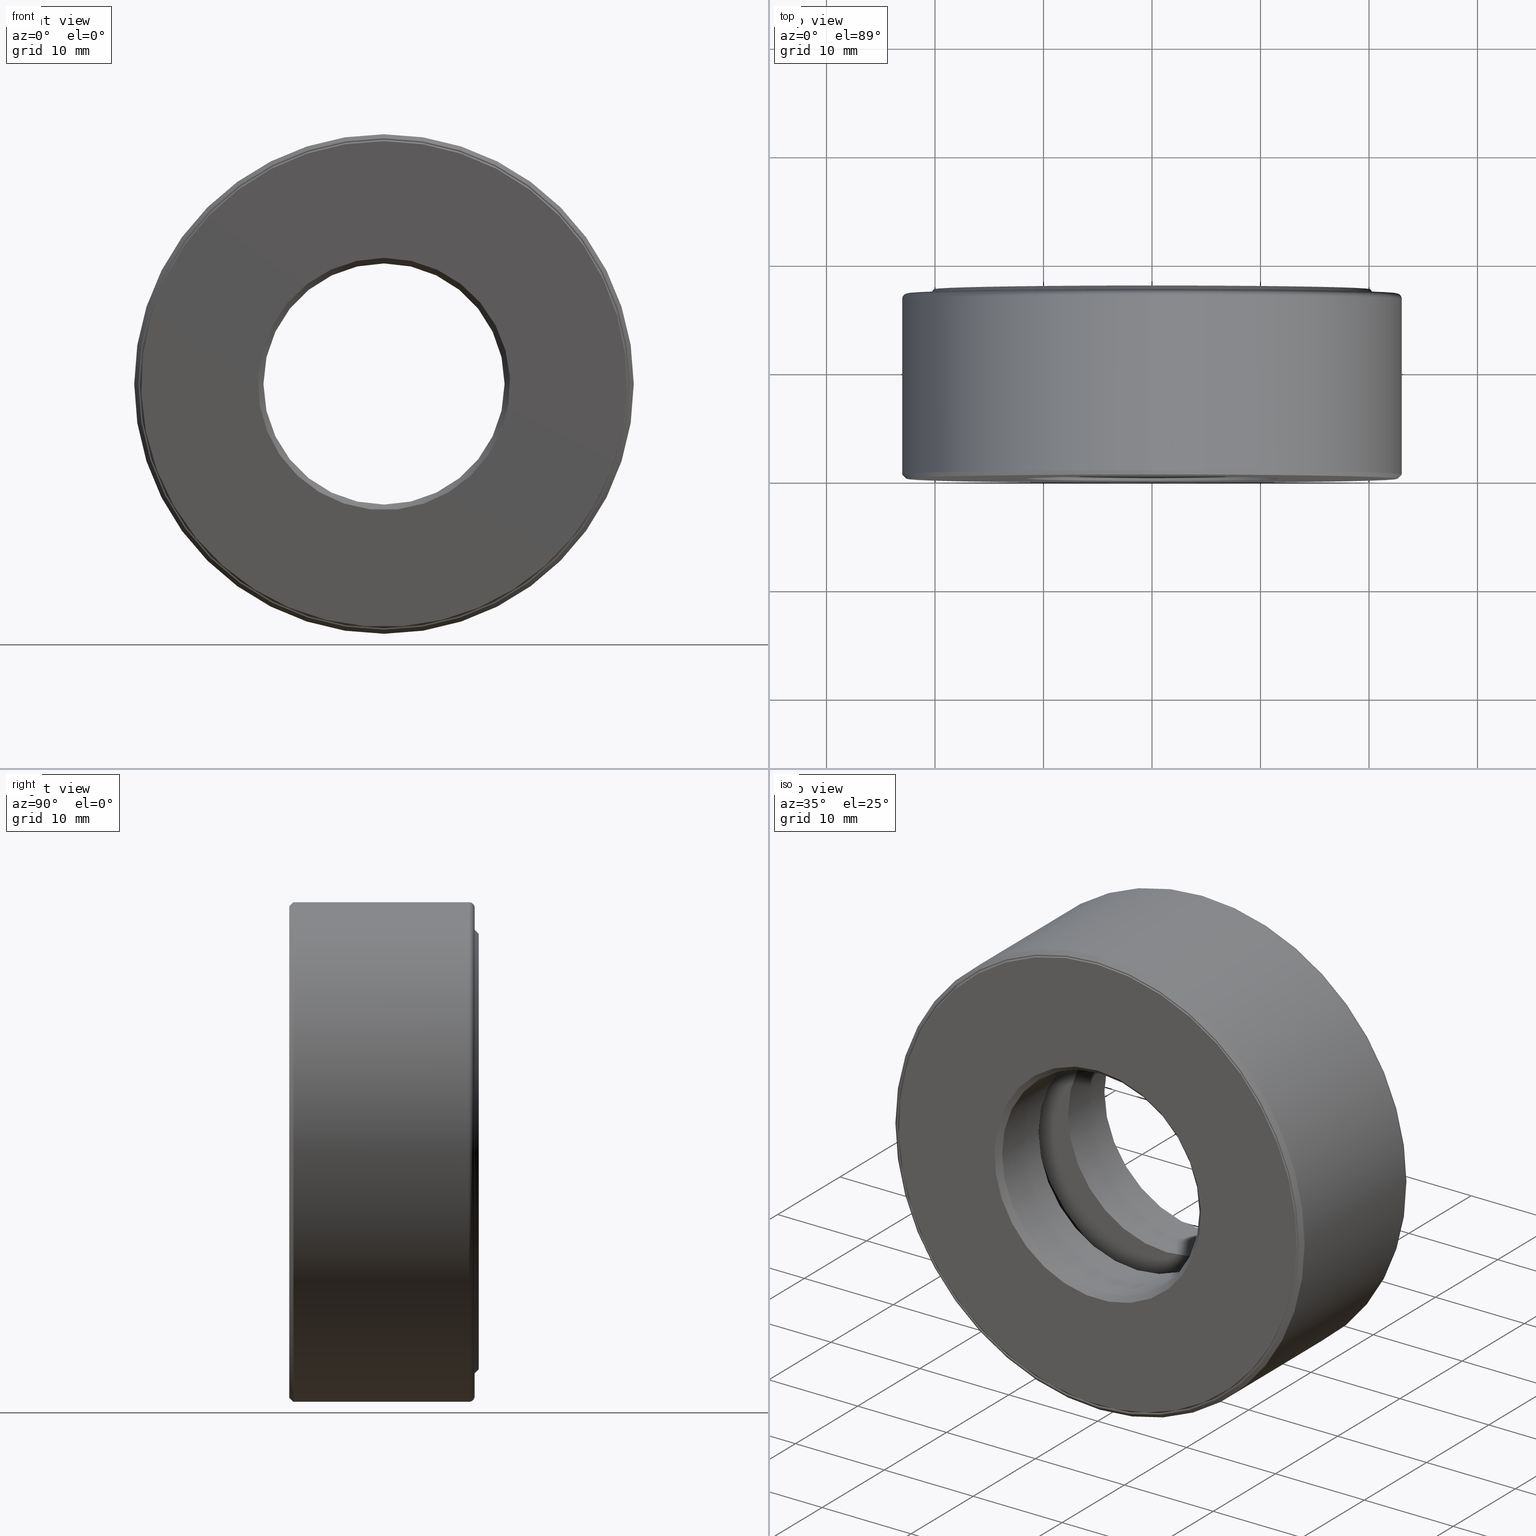
[diagram: canonical four-view strip — front | top / right | iso, engineering-drawing reading convention]
A machine part, canonical four-view strip (front | top / right | iso — engineering-drawing reading convention). The complete STEP part file that produces these views, byte-faithful:
ISO-10303-21;
HEADER;
FILE_DESCRIPTION (( 'STEP AP203' ),
    '1' );
FILE_NAME ('T-100-4.step',
    '2016-06-29T18:27:12',
    ( '' ),
    ( '' ),
    'SwSTEP 2.0',
    'SolidWorks 2016',
    '' );
FILE_SCHEMA (( 'CONFIG_CONTROL_DESIGN' ));
ENDSEC;

DATA;
#1 = AXIS2_PLACEMENT_3D ( 'NONE', #61, #114, #575 ) ;
#2 = DIRECTION ( 'NONE',  ( 0.0000000000000000000, 0.0000000000000000000, 1.000000000000000000 ) ) ;
#3 = DATE_TIME_ROLE ( 'classification_date' ) ;
#4 = DIRECTION ( 'NONE',  ( 0.0000000000000000000, 0.0000000000000000000, 1.000000000000000000 ) ) ;
#5 = DIRECTION ( 'NONE',  ( 0.0000000000000000000, -1.000000000000000000, 0.0000000000000000000 ) ) ;
#6 = EDGE_LOOP ( 'NONE', ( #111 ) ) ;
#7 = DIRECTION ( 'NONE',  ( 0.0000000000000000000, 0.0000000000000000000, 1.000000000000000000 ) ) ;
#8 = DIRECTION ( 'NONE',  ( -0.0000000000000000000, 1.000000000000000000, -0.0000000000000000000 ) ) ;
#9 = PLANE ( 'NONE',  #516 ) ;
#10 = CONICAL_SURFACE ( 'NONE', #309, 0.4375000000000000600, 0.7853981633974482800 ) ;
#11 = PERSON_AND_ORGANIZATION ( #130, #340 ) ;
#12 = EDGE_LOOP ( 'NONE', ( #605 ) ) ;
#13 = EDGE_LOOP ( 'NONE', ( #454 ) ) ;
#14 = CC_DESIGN_PERSON_AND_ORGANIZATION_ASSIGNMENT ( #11, #565, ( #489 ) ) ;
#15 = CARTESIAN_POINT ( 'NONE',  ( 0.0000000000000000000, 0.4375000000000000000, 0.0000000000000000000 ) ) ;
#16 = AXIS2_PLACEMENT_3D ( 'NONE', #172, #364, #263 ) ;
#17 = CARTESIAN_POINT ( 'NONE',  ( -1.054954555725636600E-032, -5.995991270769618800E-017, 0.0000000000000000000 ) ) ;
#18 = CIRCLE ( 'NONE', #55, 0.4375000000000000600 ) ;
#19 = DIRECTION ( 'NONE',  ( 0.0000000000000000000, 0.0000000000000000000, 1.000000000000000000 ) ) ;
#20 = PERSON_AND_ORGANIZATION ( #130, #340 ) ;
#21 = ADVANCED_BREP_SHAPE_REPRESENTATION ( 'T-100-4', ( #346, #255, #224, #234, #365, #83, #238 ), #399 ) ;
#22 = ORIENTED_EDGE ( 'NONE', *, *, #230, .F. ) ;
#23 = EDGE_CURVE ( 'NONE', #418, #418, #511, .T. ) ;
#24 = CC_DESIGN_DATE_AND_TIME_ASSIGNMENT ( #148, #334, ( #302 ) ) ;
#25 = CIRCLE ( 'NONE', #249, 0.8812500000000000900 ) ;
#26 = ORIENTED_EDGE ( 'NONE', *, *, #580, .F. ) ;
#27 = DIRECTION ( 'NONE',  ( 0.0000000000000000000, 0.0000000000000000000, 1.000000000000000000 ) ) ;
#28 = AXIS2_PLACEMENT_3D ( 'NONE', #602, #547, #219 ) ;
#29 = EDGE_CURVE ( 'NONE', #499, #499, #392, .T. ) ;
#30 = FACE_OUTER_BOUND ( 'NONE', #581, .T. ) ;
#31 = DIRECTION ( 'NONE',  ( 0.0000000000000000000, -1.000000000000000000, 0.0000000000000000000 ) ) ;
#32 = PERSON_AND_ORGANIZATION ( #130, #340 ) ;
#33 = VERTEX_POINT ( 'NONE', #135 ) ;
#34 = CC_DESIGN_DATE_AND_TIME_ASSIGNMENT ( #336, #3, ( #489 ) ) ;
#35 = ORIENTED_EDGE ( 'NONE', *, *, #126, .F. ) ;
#36 = EDGE_LOOP ( 'NONE', ( #183 ) ) ;
#37 = APPROVAL ( #53, 'UNSPECIFIED' ) ;
#38 = ADVANCED_FACE ( 'NONE', ( #447, #461 ), #138, .T. ) ;
#39 = CIRCLE ( 'NONE', #125, 0.5960000000000003100 ) ;
#40 = CARTESIAN_POINT ( 'NONE',  ( 0.0000000000000000000, 0.6524999999999999700, 0.9062500000000001100 ) ) ;
#41 = TOROIDAL_SURFACE ( 'NONE', #467, 0.8862499999999999800, 0.02000000000000005900 ) ;
#42 = CIRCLE ( 'NONE', #157, 0.4575000000000000200 ) ;
#43 = CARTESIAN_POINT ( 'NONE',  ( 0.0000000000000000000, 0.6724999999999999900, 0.8862499999999999800 ) ) ;
#44 = ADVANCED_FACE ( 'NONE', ( #322, #304 ), #122, .F. ) ;
#45 = PLANE ( 'NONE',  #99 ) ;
#46 = CARTESIAN_POINT ( 'NONE',  ( 0.0000000000000000000, -5.975917486140575200E-017, 0.0000000000000000000 ) ) ;
#47 = CARTESIAN_POINT ( 'NONE',  ( 0.0000000000000000000, 0.6524999999999999700, 0.0000000000000000000 ) ) ;
#48 = CARTESIAN_POINT ( 'NONE',  ( 0.0000000000000000000, 0.6524999999999999700, 0.8862500000000000900 ) ) ;
#49 = CARTESIAN_POINT ( 'NONE',  ( 0.0000000000000000000, 0.6875000000000000000, 0.0000000000000000000 ) ) ;
#50 = PERSON_AND_ORGANIZATION_ROLE ( 'design_owner' ) ;
#51 = EDGE_LOOP ( 'NONE', ( #205 ) ) ;
#52 = DIRECTION ( 'NONE',  ( -0.0000000000000000000, 1.000000000000000000, -0.0000000000000000000 ) ) ;
#53 = APPROVAL_STATUS ( 'not_yet_approved' ) ;
#54 = CARTESIAN_POINT ( 'NONE',  ( 0.0000000000000000000, 0.0000000000000000000, 0.0000000000000000000 ) ) ;
#55 = AXIS2_PLACEMENT_3D ( 'NONE', #335, #52, #523 ) ;
#56 = FACE_BOUND ( 'NONE', #149, .T. ) ;
#57 = DIRECTION ( 'NONE',  ( 0.0000000000000000000, 0.0000000000000000000, 1.000000000000000000 ) ) ;
#58 = VERTEX_POINT ( 'NONE', #134 ) ;
#59 = ORIENTED_EDGE ( 'NONE', *, *, #143, .T. ) ;
#60 = FACE_OUTER_BOUND ( 'NONE', #313, .T. ) ;
#61 = CARTESIAN_POINT ( 'NONE',  ( 0.0000000000000000000, 0.6875000000000000000, 0.0000000000000000000 ) ) ;
#62 = DIRECTION ( 'NONE',  ( -0.0000000000000000000, 1.000000000000000000, -0.0000000000000000000 ) ) ;
#63 = CARTESIAN_POINT ( 'NONE',  ( 0.0000000000000000000, 0.6724999999999999900, 0.0000000000000000000 ) ) ;
#64 = FACE_BOUND ( 'NONE', #374, .T. ) ;
#65 = CALENDAR_DATE ( 2016, 29, 6 ) ;
#66 = VERTEX_POINT ( 'NONE', #181 ) ;
#67 = DIRECTION ( 'NONE',  ( -3.491481338843133000E-015, 0.0000000000000000000, -1.000000000000000000 ) ) ;
#68 = EDGE_CURVE ( 'NONE', #509, #509, #540, .T. ) ;
#69 = EDGE_LOOP ( 'NONE', ( #104 ) ) ;
#70 = SPHERICAL_SURFACE ( 'NONE', #279, 0.1562500000000000000 ) ;
#71 = CIRCLE ( 'NONE', #451, 0.8460000000000002000 ) ;
#72 = CC_DESIGN_PERSON_AND_ORGANIZATION_ASSIGNMENT ( #484, #475, ( #302 ) ) ;
#73 = DIRECTION ( 'NONE',  ( 0.0000000000000000000, 0.0000000000000000000, 1.000000000000000000 ) ) ;
#74 = FACE_OUTER_BOUND ( 'NONE', #86, .T. ) ;
#75 = AXIS2_PLACEMENT_3D ( 'NONE', #546, #81, #73 ) ;
#76 = VERTEX_POINT ( 'NONE', #43 ) ;
#77 = CARTESIAN_POINT ( 'NONE',  ( 0.0000000000000000000, 0.2499999999999999200, 0.0000000000000000000 ) ) ;
#78 = EDGE_LOOP ( 'NONE', ( #59 ) ) ;
#79 = ORIENTED_EDGE ( 'NONE', *, *, #68, .F. ) ;
#80 = ADVANCED_FACE ( 'NONE', ( ), #485, .T. ) ;
#81 = DIRECTION ( 'NONE',  ( -0.0000000000000000000, 1.000000000000000000, -0.0000000000000000000 ) ) ;
#82 = PLANE ( 'NONE',  #573 ) ;
#83 = MANIFOLD_SOLID_BREP ( 'BALLS[3]', #247 ) ;
#84 = AXIS2_PLACEMENT_3D ( 'NONE', #465, #222, #323 ) ;
#85 = DIRECTION ( 'NONE',  ( -0.0000000000000000000, 1.000000000000000000, -0.0000000000000000000 ) ) ;
#86 = EDGE_LOOP ( 'NONE', ( #306 ) ) ;
#87 = CLOSED_SHELL ( 'NONE', ( #80 ) ) ;
#88 = AXIS2_PLACEMENT_3D ( 'NONE', #456, #31, #590 ) ;
#89 = ADVANCED_FACE ( 'NONE', ( #259, #208 ), #41, .T. ) ;
#90 = CARTESIAN_POINT ( 'NONE',  ( 0.0000000000000000000, 0.02000000000000005900, 0.0000000000000000000 ) ) ;
#91 = DIRECTION ( 'NONE',  ( 0.0000000000000000000, 0.0000000000000000000, 1.000000000000000000 ) ) ;
#92 = CARTESIAN_POINT ( 'NONE',  ( 0.0000000000000000000, 0.6875000000000000000, 0.7912499999999999000 ) ) ;
#93 = CIRCLE ( 'NONE', #480, 0.8460000000000002000 ) ;
#94 = LOCAL_TIME ( 14, 27, 12.00000000000000000, #352 ) ;
#95 =( LENGTH_UNIT ( ) NAMED_UNIT ( * ) SI_UNIT ( $, .METRE. ) );
#96 = DIMENSIONAL_EXPONENTS ( 1.000000000000000000, 0.0000000000000000000, 0.0000000000000000000, 0.0000000000000000000, 0.0000000000000000000, 0.0000000000000000000, 0.0000000000000000000 ) ;
#97 = EDGE_LOOP ( 'NONE', ( #22 ) ) ;
#98 = EDGE_LOOP ( 'NONE', ( #479 ) ) ;
#99 = AXIS2_PLACEMENT_3D ( 'NONE', #513, #225, #142 ) ;
#100 = CIRCLE ( 'NONE', #599, 0.5960000000000003100 ) ;
#101 = VERTEX_POINT ( 'NONE', #218 ) ;
#102 = ORIENTED_EDGE ( 'NONE', *, *, #526, .T. ) ;
#103 = PERSON_AND_ORGANIZATION_ROLE ( 'creator' ) ;
#104 = ORIENTED_EDGE ( 'NONE', *, *, #433, .F. ) ;
#105 = CARTESIAN_POINT ( 'NONE',  ( 0.0000000000000000000, 0.3437500000000000000, 0.0000000000000000000 ) ) ;
#106 = DIRECTION ( 'NONE',  ( -0.0000000000000000000, 1.000000000000000000, 0.0000000000000000000 ) ) ;
#107 = DIRECTION ( 'NONE',  ( -0.0000000000000000000, 1.000000000000000000, -0.0000000000000000000 ) ) ;
#108 = CIRCLE ( 'NONE', #504, 0.8792500000000002000 ) ;
#109 = DIRECTION ( 'NONE',  ( 0.0000000000000000000, -0.0000000000000000000, -1.000000000000000000 ) ) ;
#110 = EDGE_CURVE ( 'NONE', #434, #434, #196, .T. ) ;
#111 = ORIENTED_EDGE ( 'NONE', *, *, #424, .T. ) ;
#112 = DIRECTION ( 'NONE',  ( -0.0000000000000000000, 1.000000000000000000, -0.0000000000000000000 ) ) ;
#113 = ADVANCED_FACE ( 'NONE', ( #570, #493 ), #45, .T. ) ;
#114 = DIRECTION ( 'NONE',  ( -0.0000000000000000000, 1.000000000000000000, -0.0000000000000000000 ) ) ;
#115 = VERTEX_POINT ( 'NONE', #48 ) ;
#116 = EDGE_LOOP ( 'NONE', ( #503 ) ) ;
#117 = ORIENTED_EDGE ( 'NONE', *, *, #502, .T. ) ;
#118 = AXIS2_PLACEMENT_3D ( 'NONE', #204, #482, #531 ) ;
#119 = FACE_OUTER_BOUND ( 'NONE', #98, .T. ) ;
#120 = DIRECTION ( 'NONE',  ( -0.0000000000000000000, 1.000000000000000000, -0.0000000000000000000 ) ) ;
#121 = LOCAL_TIME ( 14, 27, 12.00000000000000000, #543 ) ;
#122 = CYLINDRICAL_SURFACE ( 'NONE', #28, 0.4375000000000000600 ) ;
#123 = DIRECTION ( 'NONE',  ( 0.0000000000000000000, 0.0000000000000000000, 1.000000000000000000 ) ) ;
#124 = DIRECTION ( 'NONE',  ( -0.0000000000000000000, 1.000000000000000000, -0.0000000000000000000 ) ) ;
#125 = AXIS2_PLACEMENT_3D ( 'NONE', #395, #295, #535 ) ;
#126 = EDGE_CURVE ( 'NONE', #268, #268, #71, .T. ) ;
#127 = DIRECTION ( 'NONE',  ( 0.0000000000000000000, 0.0000000000000000000, 1.000000000000000000 ) ) ;
#128 = CC_DESIGN_APPROVAL ( #415, ( #489 ) ) ;
#129 = ADVANCED_FACE ( 'NONE', ( #169, #60 ), #508, .F. ) ;
#130 = PERSON ( 'UNSPECIFIED', 'UNSPECIFIED', 'UNSPECIFIED', ('UNSPECIFIED'), ('UNSPECIFIED'), ('UNSPECIFIED') ) ;
#131 = ORIENTED_EDGE ( 'NONE', *, *, #126, .T. ) ;
#132 = CARTESIAN_POINT ( 'NONE',  ( 0.0000000000000000000, 0.0000000000000000000, 0.0000000000000000000 ) ) ;
#133 = ADVANCED_FACE ( 'NONE', ( #161, #329 ), #387, .T. ) ;
#134 = CARTESIAN_POINT ( 'NONE',  ( 0.0000000000000000000, 0.01500000000000004500, 0.9062499999999998900 ) ) ;
#135 = CARTESIAN_POINT ( 'NONE',  ( 0.0000000000000000000, -5.975917486140576400E-017, 0.8812500000000000900 ) ) ;
#136 = ADVANCED_FACE ( 'NONE', ( #351, #518 ), #370, .F. ) ;
#137 = FACE_BOUND ( 'NONE', #350, .T. ) ;
#138 = PLANE ( 'NONE',  #585 ) ;
#139 = APPROVAL_PERSON_ORGANIZATION ( #267, #37, #431 ) ;
#140 = EDGE_LOOP ( 'NONE', ( #530 ) ) ;
#141 = CARTESIAN_POINT ( 'NONE',  ( 0.0000000000000000000, 0.6875000000000000000, 0.4575000000000001300 ) ) ;
#142 = DIRECTION ( 'NONE',  ( 0.0000000000000000000, -0.0000000000000000000, -1.000000000000000000 ) ) ;
#143 = EDGE_CURVE ( 'NONE', #163, #163, #18, .T. ) ;
#144 = CARTESIAN_POINT ( 'NONE',  ( 0.0000000000000000000, 0.6524999999999999700, 0.8262499999999999300 ) ) ;
#145 = CARTESIAN_POINT ( 'NONE',  ( -5.386135634196095900E-017, 0.2500000000000000000, 0.0000000000000000000 ) ) ;
#146 = DIRECTION ( 'NONE',  ( -0.0000000000000000000, 1.000000000000000000, -0.0000000000000000000 ) ) ;
#147 = FACE_OUTER_BOUND ( 'NONE', #521, .T. ) ;
#148 = DATE_AND_TIME ( #65, #246 ) ;
#149 = EDGE_LOOP ( 'NONE', ( #300 ) ) ;
#150 = SECURITY_CLASSIFICATION_LEVEL ( 'unclassified' ) ;
#151 = DIRECTION ( 'NONE',  ( -0.0000000000000000000, 1.000000000000000000, -0.0000000000000000000 ) ) ;
#152 = AXIS2_PLACEMENT_3D ( 'NONE', #261, #120, #178 ) ;
#153 = CYLINDRICAL_SURFACE ( 'NONE', #354, 0.4375000000000000600 ) ;
#154 = EDGE_LOOP ( 'NONE', ( #189 ) ) ;
#155 = EDGE_LOOP ( 'NONE', ( #554 ) ) ;
#156 = DIRECTION ( 'NONE',  ( 0.0000000000000000000, 0.0000000000000000000, 1.000000000000000000 ) ) ;
#157 = AXIS2_PLACEMENT_3D ( 'NONE', #510, #464, #91 ) ;
#158 = DIRECTION ( 'NONE',  ( -1.000000000000000000, 0.0000000000000000000, 3.491481338843133000E-015 ) ) ;
#159 = DIRECTION ( 'NONE',  ( -0.0000000000000000000, 1.000000000000000000, 0.0000000000000000000 ) ) ;
#160 = AXIS2_PLACEMENT_3D ( 'NONE', #195, #525, #193 ) ;
#161 = FACE_OUTER_BOUND ( 'NONE', #462, .T. ) ;
#162 = CARTESIAN_POINT ( 'NONE',  ( 0.0000000000000000000, 0.4375000000000000000, 0.0000000000000000000 ) ) ;
#163 = VERTEX_POINT ( 'NONE', #606 ) ;
#164 = EDGE_LOOP ( 'NONE', ( #217 ) ) ;
#165 = EDGE_LOOP ( 'NONE', ( #448 ) ) ;
#166 = CC_DESIGN_SECURITY_CLASSIFICATION ( #489, ( #357 ) ) ;
#167 = FACE_OUTER_BOUND ( 'NONE', #260, .T. ) ;
#168 = VERTEX_POINT ( 'NONE', #471 ) ;
#169 = FACE_OUTER_BOUND ( 'NONE', #51, .T. ) ;
#170 = EDGE_LOOP ( 'NONE', ( #491 ) ) ;
#171 = CARTESIAN_POINT ( 'NONE',  ( -7.552074135917700500E-015, 0.3437500000000000000, -0.7210000000000003100 ) ) ;
#172 = CARTESIAN_POINT ( 'NONE',  ( 0.0000000000000000000, 0.5995000000000000300, 0.0000000000000000000 ) ) ;
#173 = FACE_OUTER_BOUND ( 'NONE', #419, .T. ) ;
#174 = APPROVAL_PERSON_ORGANIZATION ( #32, #415, #477 ) ;
#175 = CLOSED_SHELL ( 'NONE', ( #417 ) ) ;
#176 = EDGE_LOOP ( 'NONE', ( #35 ) ) ;
#177 = ADVANCED_FACE ( 'NONE', ( #167, #533 ), #601, .F. ) ;
#178 = DIRECTION ( 'NONE',  ( 0.0000000000000000000, 0.0000000000000000000, 1.000000000000000000 ) ) ;
#179 = CIRCLE ( 'NONE', #16, 0.8792499999999998600 ) ;
#180 = VERTEX_POINT ( 'NONE', #40 ) ;
#181 = CARTESIAN_POINT ( 'NONE',  ( 0.0000000000000000000, 0.4375000000000000000, 0.5960000000000003100 ) ) ;
#182 = DIRECTION ( 'NONE',  ( -0.0000000000000000000, 1.000000000000000000, -0.0000000000000000000 ) ) ;
#183 = ORIENTED_EDGE ( 'NONE', *, *, #29, .T. ) ;
#184 = ADVANCED_FACE ( 'NONE', ( #119, #147 ), #396, .T. ) ;
#185 = CARTESIAN_POINT ( 'NONE',  ( 0.0000000000000000000, 0.2499999999999999200, 0.8460000000000002000 ) ) ;
#186 = CARTESIAN_POINT ( 'NONE',  ( 0.0000000000000000000, 0.0000000000000000000, 0.4575000000000000200 ) ) ;
#187 = DIRECTION ( 'NONE',  ( -0.0000000000000000000, 1.000000000000000000, -0.0000000000000000000 ) ) ;
#188 = CYLINDRICAL_SURFACE ( 'NONE', #368, 0.8862500000000000900 ) ;
#189 = ORIENTED_EDGE ( 'NONE', *, *, #517, .F. ) ;
#190 = CARTESIAN_POINT ( 'NONE',  ( 0.0000000000000000000, 0.6524999999999999700, 0.0000000000000000000 ) ) ;
#191 = DIRECTION ( 'NONE',  ( 0.0000000000000000000, -0.0000000000000000000, -1.000000000000000000 ) ) ;
#192 = UNCERTAINTY_MEASURE_WITH_UNIT (LENGTH_MEASURE( 1.000000000000000100E-005 ), #377, 'distance_accuracy_value', 'NONE');
#193 = DIRECTION ( 'NONE',  ( 0.0000000000000000000, -0.0000000000000000000, -1.000000000000000000 ) ) ;
#194 = FACE_BOUND ( 'NONE', #324, .T. ) ;
#195 = CARTESIAN_POINT ( 'NONE',  ( -2.120999995080973100E-016, 0.2499999999999999200, 0.0000000000000000000 ) ) ;
#196 = CIRCLE ( 'NONE', #262, 0.4375000000000000000 ) ;
#197 = FACE_OUTER_BOUND ( 'NONE', #203, .T. ) ;
#198 = ORIENTED_EDGE ( 'NONE', *, *, #526, .F. ) ;
#199 = PLANE ( 'NONE',  #487 ) ;
#200 = AXIS2_PLACEMENT_3D ( 'NONE', #558, #85, #376 ) ;
#201 = DIRECTION ( 'NONE',  ( -0.0000000000000000000, 1.000000000000000000, 0.0000000000000000000 ) ) ;
#202 = FACE_OUTER_BOUND ( 'NONE', #36, .T. ) ;
#203 = EDGE_LOOP ( 'NONE', ( #353 ) ) ;
#204 = CARTESIAN_POINT ( 'NONE',  ( 0.0000000000000000000, 0.0000000000000000000, 0.0000000000000000000 ) ) ;
#205 = ORIENTED_EDGE ( 'NONE', *, *, #400, .T. ) ;
#206 = AXIS2_PLACEMENT_3D ( 'NONE', #46, #555, #327 ) ;
#207 = CC_DESIGN_PERSON_AND_ORGANIZATION_ASSIGNMENT ( #519, #50, ( #356 ) ) ;
#208 = FACE_OUTER_BOUND ( 'NONE', #209, .T. ) ;
#209 = EDGE_LOOP ( 'NONE', ( #254 ) ) ;
#210 = AXIS2_PLACEMENT_3D ( 'NONE', #420, #223, #557 ) ;
#211 = DIRECTION ( 'NONE',  ( 1.000000000000000000, 0.0000000000000000000, -1.047444401652940000E-014 ) ) ;
#212 = SPHERICAL_SURFACE ( 'NONE', #578, 0.1562500000000000000 ) ;
#213 = COORDINATED_UNIVERSAL_TIME_OFFSET ( 5, 0, .BEHIND. ) ;
#214 = EDGE_LOOP ( 'NONE', ( #441 ) ) ;
#215 = ADVANCED_FACE ( 'NONE', ( #74, #245 ), #492, .F. ) ;
#216 = DIRECTION ( 'NONE',  ( -0.0000000000000000000, 1.000000000000000000, -0.0000000000000000000 ) ) ;
#217 = ORIENTED_EDGE ( 'NONE', *, *, #433, .T. ) ;
#218 = CARTESIAN_POINT ( 'NONE',  ( 0.0000000000000000000, -6.016065055398661200E-017, 0.8862500000000000900 ) ) ;
#219 = DIRECTION ( 'NONE',  ( 0.0000000000000000000, 0.0000000000000000000, 1.000000000000000000 ) ) ;
#220 = AXIS2_PLACEMENT_3D ( 'NONE', #497, #545, #265 ) ;
#221 = DIRECTION ( 'NONE',  ( 0.0000000000000000000, 0.0000000000000000000, 1.000000000000000000 ) ) ;
#222 = DIRECTION ( 'NONE',  ( -0.0000000000000000000, 1.000000000000000000, -0.0000000000000000000 ) ) ;
#223 = DIRECTION ( 'NONE',  ( 0.0000000000000000000, -1.000000000000000000, 0.0000000000000000000 ) ) ;
#224 = MANIFOLD_SOLID_BREP ( 'Revolve3', #175 ) ;
#225 = DIRECTION ( 'NONE',  ( 0.0000000000000000000, -1.000000000000000000, 0.0000000000000000000 ) ) ;
#226 = ADVANCED_FACE ( 'NONE', ( #30, #202 ), #153, .F. ) ;
#227 = FACE_BOUND ( 'NONE', #13, .T. ) ;
#228 = LENGTH_MEASURE_WITH_UNIT ( LENGTH_MEASURE( 0.02539999999999999900 ), #95 );
#229 = CARTESIAN_POINT ( 'NONE',  ( 0.0000000000000000000, 0.2500000000000000000, 0.5960000000000003100 ) ) ;
#230 = EDGE_CURVE ( 'NONE', #33, #33, #25, .T. ) ;
#231 = DIRECTION ( 'NONE',  ( 0.0000000000000000000, 0.0000000000000000000, 1.000000000000000000 ) ) ;
#232 = PRODUCT_DEFINITION_SHAPE ( 'NONE', 'NONE',  #302 ) ;
#233 = PLANE ( 'NONE',  #378 ) ;
#234 = MANIFOLD_SOLID_BREP ( 'BALLS[1]', #536 ) ;
#235 = PERSON_AND_ORGANIZATION_ROLE ( 'design_supplier' ) ;
#236 = CARTESIAN_POINT ( 'NONE',  ( 0.0000000000000000000, 0.6724999999999999900, 0.0000000000000000000 ) ) ;
#237 = DATE_AND_TIME ( #252, #94 ) ;
#238 = AXIS2_PLACEMENT_3D ( 'NONE', #460, #231, #595 ) ;
#239 = VERTEX_POINT ( 'NONE', #144 ) ;
#240 = EDGE_LOOP ( 'NONE', ( #79 ) ) ;
#241 = ORIENTED_EDGE ( 'NONE', *, *, #580, .T. ) ;
#242 = DIRECTION ( 'NONE',  ( 0.0000000000000000000, 0.0000000000000000000, 1.000000000000000000 ) ) ;
#243 = AXIS2_PLACEMENT_3D ( 'NONE', #474, #146, #242 ) ;
#244 = DIRECTION ( 'NONE',  ( -0.0000000000000000000, 1.000000000000000000, -0.0000000000000000000 ) ) ;
#245 = FACE_OUTER_BOUND ( 'NONE', #269, .T. ) ;
#246 = LOCAL_TIME ( 14, 27, 12.00000000000000000, #258 ) ;
#247 = CLOSED_SHELL ( 'NONE', ( #506 ) ) ;
#248 = DIRECTION ( 'NONE',  ( 0.0000000000000000000, 0.0000000000000000000, 1.000000000000000000 ) ) ;
#249 = AXIS2_PLACEMENT_3D ( 'NONE', #561, #280, #2 ) ;
#250 = CARTESIAN_POINT ( 'NONE',  ( 0.0000000000000000000, 0.6524999999999999700, 0.0000000000000000000 ) ) ;
#251 = EDGE_CURVE ( 'NONE', #239, #239, #281, .T. ) ;
#252 = CALENDAR_DATE ( 2016, 29, 6 ) ;
#253 = VERTEX_POINT ( 'NONE', #92 ) ;
#254 = ORIENTED_EDGE ( 'NONE', *, *, #476, .T. ) ;
#255 = MANIFOLD_SOLID_BREP ( 'Revolve2[2]', #514 ) ;
#256 = AXIS2_PLACEMENT_3D ( 'NONE', #587, #124, #355 ) ;
#257 = FACE_BOUND ( 'NONE', #453, .T. ) ;
#258 = COORDINATED_UNIVERSAL_TIME_OFFSET ( 5, 0, .BEHIND. ) ;
#259 = FACE_OUTER_BOUND ( 'NONE', #582, .T. ) ;
#260 = EDGE_LOOP ( 'NONE', ( #473 ) ) ;
#261 = CARTESIAN_POINT ( 'NONE',  ( 0.0000000000000000000, 0.01500000000000004500, 0.0000000000000000000 ) ) ;
#262 = AXIS2_PLACEMENT_3D ( 'NONE', #90, #556, #422 ) ;
#263 = DIRECTION ( 'NONE',  ( 0.0000000000000000000, 0.0000000000000000000, 1.000000000000000000 ) ) ;
#264 = AXIS2_PLACEMENT_3D ( 'NONE', #132, #187, #221 ) ;
#265 = DIRECTION ( 'NONE',  ( 0.0000000000000000000, 0.0000000000000000000, 1.000000000000000000 ) ) ;
#266 = FACE_OUTER_BOUND ( 'NONE', #287, .T. ) ;
#267 = PERSON_AND_ORGANIZATION ( #130, #340 ) ;
#268 = VERTEX_POINT ( 'NONE', #185 ) ;
#269 = EDGE_LOOP ( 'NONE', ( #131 ) ) ;
#270 = DIRECTION ( 'NONE',  ( -0.0000000000000000000, 1.000000000000000000, 0.0000000000000000000 ) ) ;
#271 = APPLICATION_PROTOCOL_DEFINITION ( 'international standard', 'config_control_design', 1994, #548 ) ;
#272 = ADVANCED_FACE ( 'NONE', ( #64, #559 ), #233, .F. ) ;
#273 = CARTESIAN_POINT ( 'NONE',  ( 0.0000000000000000000, 0.2500000000000000000, 0.0000000000000000000 ) ) ;
#274 = FACE_OUTER_BOUND ( 'NONE', #344, .T. ) ;
#275 = CARTESIAN_POINT ( 'NONE',  ( 0.0000000000000000000, 0.4375000000000000000, 0.0000000000000000000 ) ) ;
#276 = ORIENTED_EDGE ( 'NONE', *, *, #68, .T. ) ;
#277 = ORIENTED_EDGE ( 'NONE', *, *, #251, .T. ) ;
#278 = ADVANCED_FACE ( 'NONE', ( #438, #266 ), #522, .F. ) ;
#279 = AXIS2_PLACEMENT_3D ( 'NONE', #171, #211, #541 ) ;
#280 = DIRECTION ( 'NONE',  ( -0.0000000000000000000, 1.000000000000000000, -0.0000000000000000000 ) ) ;
#281 = CIRCLE ( 'NONE', #307, 0.8262499999999999300 ) ;
#282 = APPROVAL_ROLE ( '' ) ;
#283 = AXIS2_PLACEMENT_3D ( 'NONE', #436, #244, #301 ) ;
#284 = DIRECTION ( 'NONE',  ( 0.0000000000000000000, 0.0000000000000000000, 1.000000000000000000 ) ) ;
#285 = EDGE_LOOP ( 'NONE', ( #435 ) ) ;
#286 = EDGE_CURVE ( 'NONE', #76, #76, #527, .T. ) ;
#287 = EDGE_LOOP ( 'NONE', ( #604 ) ) ;
#288 = CARTESIAN_POINT ( 'NONE',  ( 0.0000000000000000000, 0.0000000000000000000, 0.0000000000000000000 ) ) ;
#289 = CIRCLE ( 'NONE', #524, 0.8862500000000000900 ) ;
#290 = AXIS2_PLACEMENT_3D ( 'NONE', #310, #404, #123 ) ;
#291 = APPROVAL_STATUS ( 'not_yet_approved' ) ;
#292 = ORIENTED_EDGE ( 'NONE', *, *, #469, .T. ) ;
#293 = CARTESIAN_POINT ( 'NONE',  ( -0.7210000000000003100, 0.3437500000000000000, 0.0000000000000000000 ) ) ;
#294 = AXIS2_PLACEMENT_3D ( 'NONE', #288, #8, #4 ) ;
#295 = DIRECTION ( 'NONE',  ( -0.0000000000000000000, 1.000000000000000000, -0.0000000000000000000 ) ) ;
#296 = CIRCLE ( 'NONE', #1, 0.4575000000000001300 ) ;
#297 = DIRECTION ( 'NONE',  ( 0.0000000000000000000, 0.0000000000000000000, 1.000000000000000000 ) ) ;
#298 = APPROVAL_DATE_TIME ( #446, #389 ) ;
#299 = ORIENTED_EDGE ( 'NONE', *, *, #29, .F. ) ;
#300 = ORIENTED_EDGE ( 'NONE', *, *, #502, .F. ) ;
#301 = DIRECTION ( 'NONE',  ( 0.0000000000000000000, 0.0000000000000000000, 1.000000000000000000 ) ) ;
#302 = PRODUCT_DEFINITION ( 'UNKNOWN', '', #357, #343 ) ;
#303 = CIRCLE ( 'NONE', #152, 0.9062499999999998900 ) ;
#304 = FACE_OUTER_BOUND ( 'NONE', #285, .T. ) ;
#305 = FACE_OUTER_BOUND ( 'NONE', #427, .T. ) ;
#306 = ORIENTED_EDGE ( 'NONE', *, *, #566, .F. ) ;
#307 = AXIS2_PLACEMENT_3D ( 'NONE', #190, #564, #284 ) ;
#308 = CC_DESIGN_APPROVAL ( #37, ( #357 ) ) ;
#309 = AXIS2_PLACEMENT_3D ( 'NONE', #408, #457, #127 ) ;
#310 = CARTESIAN_POINT ( 'NONE',  ( 0.0000000000000000000, -5.975917486140576400E-017, 0.0000000000000000000 ) ) ;
#311 = FACE_OUTER_BOUND ( 'NONE', #164, .T. ) ;
#312 = CALENDAR_DATE ( 2016, 29, 6 ) ;
#313 = EDGE_LOOP ( 'NONE', ( #520 ) ) ;
#314 = AXIS2_PLACEMENT_3D ( 'NONE', #49, #106, #385 ) ;
#315 = EDGE_CURVE ( 'NONE', #253, #253, #498, .T. ) ;
#316 = ADVANCED_FACE ( 'NONE', ( #379, #550 ), #199, .F. ) ;
#317 = AXIS2_PLACEMENT_3D ( 'NONE', #293, #347, #342 ) ;
#318 = CONICAL_SURFACE ( 'NONE', #290, 0.8812500000000000900, 0.7853981633974267400 ) ;
#319 = FACE_OUTER_BOUND ( 'NONE', #214, .T. ) ;
#320 = VERTEX_POINT ( 'NONE', #141 ) ;
#321 = MECHANICAL_CONTEXT ( 'NONE', #548, 'mechanical' ) ;
#322 = FACE_OUTER_BOUND ( 'NONE', #349, .T. ) ;
#323 = DIRECTION ( 'NONE',  ( 0.0000000000000000000, 0.0000000000000000000, 1.000000000000000000 ) ) ;
#324 = EDGE_LOOP ( 'NONE', ( #277 ) ) ;
#325 = CARTESIAN_POINT ( 'NONE',  ( 0.0000000000000000000, 0.005000000000000238600, 0.8862500000000000900 ) ) ;
#326 = CARTESIAN_POINT ( 'NONE',  ( 0.7210000000000003100, 0.3437500000000000000, -5.034716090611800100E-015 ) ) ;
#327 = DIRECTION ( 'NONE',  ( 0.0000000000000000000, 0.0000000000000000000, 1.000000000000000000 ) ) ;
#328 = CARTESIAN_POINT ( 'NONE',  ( 0.0000000000000000000, 0.2500000000000000600, 0.0000000000000000000 ) ) ;
#329 = FACE_BOUND ( 'NONE', #69, .T. ) ;
#330 = DIRECTION ( 'NONE',  ( 0.0000000000000000000, 0.0000000000000000000, 1.000000000000000000 ) ) ;
#331 = EDGE_LOOP ( 'NONE', ( #102 ) ) ;
#332 = DIRECTION ( 'NONE',  ( -0.0000000000000000000, 1.000000000000000000, -0.0000000000000000000 ) ) ;
#333 = APPROVAL_STATUS ( 'not_yet_approved' ) ;
#334 = DATE_TIME_ROLE ( 'creation_date' ) ;
#335 = CARTESIAN_POINT ( 'NONE',  ( 0.0000000000000000000, 0.4375000000000000000, 0.0000000000000000000 ) ) ;
#336 = DATE_AND_TIME ( #361, #121 ) ;
#337 = SHAPE_DEFINITION_REPRESENTATION ( #232, #21 ) ;
#338 = EDGE_LOOP ( 'NONE', ( #341 ) ) ;
#339 = CIRCLE ( 'NONE', #569, 0.8862500000000000900 ) ;
#340 = ORGANIZATION ( 'UNSPECIFIED', 'UNSPECIFIED', '' ) ;
#341 = ORIENTED_EDGE ( 'NONE', *, *, #537, .T. ) ;
#342 = DIRECTION ( 'NONE',  ( 1.000000000000000000, 0.0000000000000000000, 0.0000000000000000000 ) ) ;
#343 = DESIGN_CONTEXT ( 'detailed design', #428, 'design' ) ;
#344 = EDGE_LOOP ( 'NONE', ( #563 ) ) ;
#345 = DIRECTION ( 'NONE',  ( 0.0000000000000000000, 0.0000000000000000000, 1.000000000000000000 ) ) ;
#346 = MANIFOLD_SOLID_BREP ( 'Revolve2[1]', #589 ) ;
#347 = DIRECTION ( 'NONE',  ( 0.0000000000000000000, 0.0000000000000000000, -1.000000000000000000 ) ) ;
#348 = AXIS2_PLACEMENT_3D ( 'NONE', #105, #332, #572 ) ;
#349 = EDGE_LOOP ( 'NONE', ( #117 ) ) ;
#350 = EDGE_LOOP ( 'NONE', ( #398 ) ) ;
#351 = FACE_BOUND ( 'NONE', #176, .T. ) ;
#352 = COORDINATED_UNIVERSAL_TIME_OFFSET ( 5, 0, .BEHIND. ) ;
#353 = ORIENTED_EDGE ( 'NONE', *, *, #553, .F. ) ;
#354 = AXIS2_PLACEMENT_3D ( 'NONE', #54, #388, #7 ) ;
#355 = DIRECTION ( 'NONE',  ( 0.0000000000000000000, 0.0000000000000000000, 1.000000000000000000 ) ) ;
#356 = PRODUCT ( 'T-100-4', 'T-100-4', '', ( #321 ) ) ;
#357 = PRODUCT_DEFINITION_FORMATION_WITH_SPECIFIED_SOURCE ( 'ANY', '', #356, .NOT_KNOWN. ) ;
#358 = DIRECTION ( 'NONE',  ( 0.0000000000000000000, 0.0000000000000000000, 1.000000000000000000 ) ) ;
#359 = ADVANCED_FACE ( 'NONE', ( #483, #574 ), #188, .F. ) ;
#360 = DIRECTION ( 'NONE',  ( -0.0000000000000000000, 1.000000000000000000, -0.0000000000000000000 ) ) ;
#361 = CALENDAR_DATE ( 2016, 29, 6 ) ;
#362 = VERTEX_POINT ( 'NONE', #413 ) ;
#363 = EDGE_LOOP ( 'NONE', ( #495 ) ) ;
#364 = DIRECTION ( 'NONE',  ( -0.0000000000000000000, 1.000000000000000000, -0.0000000000000000000 ) ) ;
#365 = MANIFOLD_SOLID_BREP ( 'BALLS[2]', #87 ) ;
#366 = CARTESIAN_POINT ( 'NONE',  ( 0.0000000000000000000, -5.975917486140575200E-017, 0.8912500000000001000 ) ) ;
#367 =( NAMED_UNIT ( * ) SI_UNIT ( $, .STERADIAN. ) SOLID_ANGLE_UNIT ( ) );
#368 = AXIS2_PLACEMENT_3D ( 'NONE', #486, #532, #248 ) ;
#369 = ADVANCED_FACE ( 'NONE', ( ), #212, .T. ) ;
#370 = PLANE ( 'NONE',  #160 ) ;
#371 = CIRCLE ( 'NONE', #256, 0.8262499999999999300 ) ;
#372 = PERSON_AND_ORGANIZATION ( #130, #340 ) ;
#373 = CARTESIAN_POINT ( 'NONE',  ( 0.0000000000000000000, 0.4375000000000000000, 0.8460000000000002000 ) ) ;
#374 = EDGE_LOOP ( 'NONE', ( #299 ) ) ;
#375 = DIRECTION ( 'NONE',  ( -1.000000000000000000, 0.0000000000000000000, 6.982962677686265900E-015 ) ) ;
#376 = DIRECTION ( 'NONE',  ( 0.0000000000000000000, 0.0000000000000000000, 1.000000000000000000 ) ) ;
#377 =( CONVERSION_BASED_UNIT ( 'INCH', #228 ) LENGTH_UNIT ( ) NAMED_UNIT ( #96 ) );
#378 = AXIS2_PLACEMENT_3D ( 'NONE', #145, #380, #191 ) ;
#379 = FACE_OUTER_BOUND ( 'NONE', #240, .T. ) ;
#380 = DIRECTION ( 'NONE',  ( 0.0000000000000000000, -1.000000000000000000, 0.0000000000000000000 ) ) ;
#381 = DATE_AND_TIME ( #576, #490 ) ;
#382 = APPLICATION_PROTOCOL_DEFINITION ( 'international standard', 'config_control_design', 1994, #428 ) ;
#383 = FACE_BOUND ( 'NONE', #562, .T. ) ;
#384 = EDGE_LOOP ( 'NONE', ( #442 ) ) ;
#385 = DIRECTION ( 'NONE',  ( 0.0000000000000000000, 0.0000000000000000000, 1.000000000000000000 ) ) ;
#386 = CC_DESIGN_PERSON_AND_ORGANIZATION_ASSIGNMENT ( #603, #103, ( #357 ) ) ;
#387 = PLANE ( 'NONE',  #314 ) ;
#388 = DIRECTION ( 'NONE',  ( -0.0000000000000000000, 1.000000000000000000, -0.0000000000000000000 ) ) ;
#389 = APPROVAL ( #291, 'UNSPECIFIED' ) ;
#390 = DIRECTION ( 'NONE',  ( 0.0000000000000000000, 0.0000000000000000000, 1.000000000000000000 ) ) ;
#391 = COORDINATED_UNIVERSAL_TIME_OFFSET ( 5, 0, .BEHIND. ) ;
#392 = CIRCLE ( 'NONE', #583, 0.4375000000000000600 ) ;
#393 = AXIS2_PLACEMENT_3D ( 'NONE', #236, #5, #109 ) ;
#394 = DIRECTION ( 'NONE',  ( 0.0000000000000000000, 0.0000000000000000000, 1.000000000000000000 ) ) ;
#395 = CARTESIAN_POINT ( 'NONE',  ( 0.0000000000000000000, 0.4375000000000000000, 0.0000000000000000000 ) ) ;
#396 = CYLINDRICAL_SURFACE ( 'NONE', #445, 0.9062499999999998900 ) ;
#397 = CONICAL_SURFACE ( 'NONE', #210, 0.7912499999999999000, 0.7853981633974482800 ) ;
#398 = ORIENTED_EDGE ( 'NONE', *, *, #230, .T. ) ;
#399 =( GEOMETRIC_REPRESENTATION_CONTEXT ( 3 ) GLOBAL_UNCERTAINTY_ASSIGNED_CONTEXT ( ( #192 ) ) GLOBAL_UNIT_ASSIGNED_CONTEXT ( ( #377, #412, #367 ) ) REPRESENTATION_CONTEXT ( 'NONE', 'WORKASPACE' ) );
#400 = EDGE_CURVE ( 'NONE', #66, #66, #39, .T. ) ;
#401 = FACE_OUTER_BOUND ( 'NONE', #331, .T. ) ;
#402 = SPHERICAL_SURFACE ( 'NONE', #317, 0.1562500000000000000 ) ;
#403 = EDGE_LOOP ( 'NONE', ( #529 ) ) ;
#404 = DIRECTION ( 'NONE',  ( -0.0000000000000000000, 1.000000000000000000, -0.0000000000000000000 ) ) ;
#405 = CARTESIAN_POINT ( 'NONE',  ( -9.098731732041882800E-033, -2.987958743070288800E-017, 0.0000000000000000000 ) ) ;
#406 = CYLINDRICAL_SURFACE ( 'NONE', #118, 0.8792500000000000900 ) ;
#407 = LOCAL_TIME ( 14, 27, 12.00000000000000000, #391 ) ;
#408 = CARTESIAN_POINT ( 'NONE',  ( 0.0000000000000000000, 0.6674999999999998700, 0.0000000000000000000 ) ) ;
#409 = ORIENTED_EDGE ( 'NONE', *, *, #110, .F. ) ;
#410 = CC_DESIGN_PERSON_AND_ORGANIZATION_ASSIGNMENT ( #20, #235, ( #357 ) ) ;
#411 = ADVANCED_FACE ( 'NONE', ( #319, #194 ), #9, .F. ) ;
#412 =( NAMED_UNIT ( * ) PLANE_ANGLE_UNIT ( ) SI_UNIT ( $, .RADIAN. ) );
#413 = CARTESIAN_POINT ( 'NONE',  ( 0.0000000000000000000, 0.4375000000000000000, 0.8792500000000002000 ) ) ;
#414 = FACE_OUTER_BOUND ( 'NONE', #155, .T. ) ;
#415 = APPROVAL ( #333, 'UNSPECIFIED' ) ;
#416 = VERTEX_POINT ( 'NONE', #373 ) ;
#417 = ADVANCED_FACE ( 'NONE', ( ), #402, .T. ) ;
#418 = VERTEX_POINT ( 'NONE', #325 ) ;
#419 = EDGE_LOOP ( 'NONE', ( #198 ) ) ;
#420 = CARTESIAN_POINT ( 'NONE',  ( 0.0000000000000000000, 0.6875000000000000000, 0.0000000000000000000 ) ) ;
#421 = CARTESIAN_POINT ( 'NONE',  ( 0.0000000000000000000, 0.6724999999999999900, 0.8262499999999999300 ) ) ;
#422 = DIRECTION ( 'NONE',  ( 0.0000000000000000000, 0.0000000000000000000, 1.000000000000000000 ) ) ;
#423 = DIRECTION ( 'NONE',  ( 0.0000000000000000000, 0.0000000000000000000, 1.000000000000000000 ) ) ;
#424 = EDGE_CURVE ( 'NONE', #416, #416, #93, .T. ) ;
#425 = CIRCLE ( 'NONE', #220, 0.4375000000000000600 ) ;
#426 = VERTEX_POINT ( 'NONE', #515 ) ;
#427 = EDGE_LOOP ( 'NONE', ( #292 ) ) ;
#428 = APPLICATION_CONTEXT ( 'configuration controlled 3d designs of mechanical parts and assemblies' ) ;
#429 = CARTESIAN_POINT ( 'NONE',  ( 0.0000000000000000000, 0.2499999999999999200, 0.0000000000000000000 ) ) ;
#430 = CC_DESIGN_APPROVAL ( #389, ( #302 ) ) ;
#431 = APPROVAL_ROLE ( '' ) ;
#432 = CIRCLE ( 'NONE', #596, 0.9062500000000001100 ) ;
#433 = EDGE_CURVE ( 'NONE', #320, #320, #296, .T. ) ;
#434 = VERTEX_POINT ( 'NONE', #466 ) ;
#435 = ORIENTED_EDGE ( 'NONE', *, *, #143, .F. ) ;
#436 = CARTESIAN_POINT ( 'NONE',  ( 0.0000000000000000000, 0.6875000000000000000, 0.0000000000000000000 ) ) ;
#437 = CARTESIAN_POINT ( 'NONE',  ( 2.517358045305900000E-015, 0.3437500000000000000, 0.7210000000000003100 ) ) ;
#438 = FACE_BOUND ( 'NONE', #154, .T. ) ;
#439 = APPROVAL_DATE_TIME ( #381, #37 ) ;
#440 = VERTEX_POINT ( 'NONE', #186 ) ;
#441 = ORIENTED_EDGE ( 'NONE', *, *, #469, .F. ) ;
#442 = ORIENTED_EDGE ( 'NONE', *, *, #566, .T. ) ;
#443 = CARTESIAN_POINT ( 'NONE',  ( 0.0000000000000000000, 0.6524999999999999700, 0.0000000000000000000 ) ) ;
#444 = PRODUCT_RELATED_PRODUCT_CATEGORY ( 'detail', '', ( #356 ) ) ;
#445 = AXIS2_PLACEMENT_3D ( 'NONE', #481, #567, #57 ) ;
#446 = DATE_AND_TIME ( #312, #407 ) ;
#447 = FACE_BOUND ( 'NONE', #6, .T. ) ;
#448 = ORIENTED_EDGE ( 'NONE', *, *, #553, .T. ) ;
#449 = DIRECTION ( 'NONE',  ( 0.0000000000000000000, 0.0000000000000000000, 1.000000000000000000 ) ) ;
#450 = CIRCLE ( 'NONE', #75, 0.8862500000000000900 ) ;
#451 = AXIS2_PLACEMENT_3D ( 'NONE', #429, #151, #478 ) ;
#452 = VERTEX_POINT ( 'NONE', #507 ) ;
#453 = EDGE_LOOP ( 'NONE', ( #241 ) ) ;
#454 = ORIENTED_EDGE ( 'NONE', *, *, #110, .T. ) ;
#455 = DIRECTION ( 'NONE',  ( -0.0000000000000000000, 1.000000000000000000, -0.0000000000000000000 ) ) ;
#456 = CARTESIAN_POINT ( 'NONE',  ( 0.0000000000000000000, 0.02000000000000005900, 0.0000000000000000000 ) ) ;
#457 = DIRECTION ( 'NONE',  ( -0.0000000000000000000, 1.000000000000000000, -0.0000000000000000000 ) ) ;
#458 = FACE_BOUND ( 'NONE', #170, .T. ) ;
#459 = VERTEX_POINT ( 'NONE', #229 ) ;
#460 = CARTESIAN_POINT ( 'NONE',  ( 0.0000000000000000000, 0.0000000000000000000, 0.0000000000000000000 ) ) ;
#461 = FACE_OUTER_BOUND ( 'NONE', #363, .T. ) ;
#462 = EDGE_LOOP ( 'NONE', ( #472 ) ) ;
#463 = EDGE_CURVE ( 'NONE', #362, #362, #108, .T. ) ;
#464 = DIRECTION ( 'NONE',  ( -0.0000000000000000000, 1.000000000000000000, -0.0000000000000000000 ) ) ;
#465 = CARTESIAN_POINT ( 'NONE',  ( 0.0000000000000000000, 0.005000000000000238600, 0.0000000000000000000 ) ) ;
#466 = CARTESIAN_POINT ( 'NONE',  ( 0.0000000000000000000, 0.02000000000000005900, 0.4375000000000000000 ) ) ;
#467 = AXIS2_PLACEMENT_3D ( 'NONE', #47, #216, #468 ) ;
#468 = DIRECTION ( 'NONE',  ( 0.0000000000000000000, 0.0000000000000000000, 1.000000000000000000 ) ) ;
#469 = EDGE_CURVE ( 'NONE', #115, #115, #339, .T. ) ;
#470 = ADVANCED_FACE ( 'NONE', ( #274, #173 ), #406, .T. ) ;
#471 = CARTESIAN_POINT ( 'NONE',  ( 0.0000000000000000000, 0.5995000000000000300, 0.8792499999999998600 ) ) ;
#472 = ORIENTED_EDGE ( 'NONE', *, *, #315, .T. ) ;
#473 = ORIENTED_EDGE ( 'NONE', *, *, #251, .F. ) ;
#474 = CARTESIAN_POINT ( 'NONE',  ( 0.0000000000000000000, 0.3437500000000000000, 0.0000000000000000000 ) ) ;
#475 = PERSON_AND_ORGANIZATION_ROLE ( 'creator' ) ;
#476 = EDGE_CURVE ( 'NONE', #180, #180, #432, .T. ) ;
#477 = APPROVAL_ROLE ( '' ) ;
#478 = DIRECTION ( 'NONE',  ( 0.0000000000000000000, 0.0000000000000000000, 1.000000000000000000 ) ) ;
#479 = ORIENTED_EDGE ( 'NONE', *, *, #476, .F. ) ;
#480 = AXIS2_PLACEMENT_3D ( 'NONE', #162, #528, #390 ) ;
#481 = CARTESIAN_POINT ( 'NONE',  ( 0.0000000000000000000, 0.0000000000000000000, 0.0000000000000000000 ) ) ;
#482 = DIRECTION ( 'NONE',  ( -0.0000000000000000000, 1.000000000000000000, -0.0000000000000000000 ) ) ;
#483 = FACE_OUTER_BOUND ( 'NONE', #577, .T. ) ;
#484 = PERSON_AND_ORGANIZATION ( #130, #340 ) ;
#485 = SPHERICAL_SURFACE ( 'NONE', #584, 0.1562500000000000000 ) ;
#486 = CARTESIAN_POINT ( 'NONE',  ( 0.0000000000000000000, 0.0000000000000000000, 0.0000000000000000000 ) ) ;
#487 = AXIS2_PLACEMENT_3D ( 'NONE', #17, #201, #345 ) ;
#488 = ADVANCED_FACE ( 'NONE', ( #539, #227 ), #542, .F. ) ;
#489 = SECURITY_CLASSIFICATION ( '', '', #150 ) ;
#490 = LOCAL_TIME ( 14, 27, 12.00000000000000000, #213 ) ;
#491 = ORIENTED_EDGE ( 'NONE', *, *, #315, .F. ) ;
#492 = TOROIDAL_SURFACE ( 'NONE', #243, 0.7210000000000003100, 0.1562499999999999700 ) ;
#493 = FACE_OUTER_BOUND ( 'NONE', #140, .T. ) ;
#494 = EDGE_CURVE ( 'NONE', #58, #58, #303, .T. ) ;
#495 = ORIENTED_EDGE ( 'NONE', *, *, #463, .F. ) ;
#496 = CARTESIAN_POINT ( 'NONE',  ( 0.0000000000000000000, 0.6524999999999999700, 0.0000000000000000000 ) ) ;
#497 = CARTESIAN_POINT ( 'NONE',  ( 0.0000000000000000000, 0.6674999999999998700, 0.0000000000000000000 ) ) ;
#498 = CIRCLE ( 'NONE', #283, 0.7912499999999999000 ) ;
#499 = VERTEX_POINT ( 'NONE', #560 ) ;
#500 = ADVANCED_FACE ( 'NONE', ( #586, #257 ), #82, .F. ) ;
#501 = CONICAL_SURFACE ( 'NONE', #206, 0.8912500000000001000, 0.7853981633974394000 ) ;
#502 = EDGE_CURVE ( 'NONE', #452, #452, #425, .T. ) ;
#503 = ORIENTED_EDGE ( 'NONE', *, *, #494, .F. ) ;
#504 = AXIS2_PLACEMENT_3D ( 'NONE', #15, #112, #156 ) ;
#505 = DIRECTION ( 'NONE',  ( 0.0000000000000000000, -1.000000000000000000, 0.0000000000000000000 ) ) ;
#506 = ADVANCED_FACE ( 'NONE', ( ), #70, .T. ) ;
#507 = CARTESIAN_POINT ( 'NONE',  ( 0.0000000000000000000, 0.6674999999999998700, 0.4375000000000000600 ) ) ;
#508 = TOROIDAL_SURFACE ( 'NONE', #348, 0.7210000000000003100, 0.1562499999999999400 ) ;
#509 = VERTEX_POINT ( 'NONE', #366 ) ;
#510 = CARTESIAN_POINT ( 'NONE',  ( 0.0000000000000000000, 0.0000000000000000000, 0.0000000000000000000 ) ) ;
#511 = CIRCLE ( 'NONE', #84, 0.8862500000000000900 ) ;
#512 = ADVANCED_FACE ( 'NONE', ( #311, #56 ), #10, .F. ) ;
#513 = CARTESIAN_POINT ( 'NONE',  ( 0.0000000000000000000, 0.4375000000000000000, 0.0000000000000000000 ) ) ;
#514 = CLOSED_SHELL ( 'NONE', ( #38, #129, #113, #44, #512, #133, #592, #470 ) ) ;
#515 = CARTESIAN_POINT ( 'NONE',  ( 0.0000000000000000000, 0.2499999999999999200, 0.8862500000000000900 ) ) ;
#516 = AXIS2_PLACEMENT_3D ( 'NONE', #250, #159, #19 ) ;
#517 = EDGE_CURVE ( 'NONE', #544, #544, #371, .T. ) ;
#518 = FACE_OUTER_BOUND ( 'NONE', #165, .T. ) ;
#519 = PERSON_AND_ORGANIZATION ( #130, #340 ) ;
#520 = ORIENTED_EDGE ( 'NONE', *, *, #424, .F. ) ;
#521 = EDGE_LOOP ( 'NONE', ( #534 ) ) ;
#522 = PLANE ( 'NONE',  #393 ) ;
#523 = DIRECTION ( 'NONE',  ( 0.0000000000000000000, 0.0000000000000000000, 1.000000000000000000 ) ) ;
#524 = AXIS2_PLACEMENT_3D ( 'NONE', #77, #455, #358 ) ;
#525 = DIRECTION ( 'NONE',  ( 0.0000000000000000000, -1.000000000000000000, 0.0000000000000000000 ) ) ;
#526 = EDGE_CURVE ( 'NONE', #168, #168, #179, .T. ) ;
#527 = CIRCLE ( 'NONE', #538, 0.8862499999999999800 ) ;
#528 = DIRECTION ( 'NONE',  ( -0.0000000000000000000, 1.000000000000000000, -0.0000000000000000000 ) ) ;
#529 = ORIENTED_EDGE ( 'NONE', *, *, #517, .T. ) ;
#530 = ORIENTED_EDGE ( 'NONE', *, *, #400, .F. ) ;
#531 = DIRECTION ( 'NONE',  ( 0.0000000000000000000, 0.0000000000000000000, 1.000000000000000000 ) ) ;
#532 = DIRECTION ( 'NONE',  ( -0.0000000000000000000, 1.000000000000000000, -0.0000000000000000000 ) ) ;
#533 = FACE_OUTER_BOUND ( 'NONE', #403, .T. ) ;
#534 = ORIENTED_EDGE ( 'NONE', *, *, #494, .T. ) ;
#535 = DIRECTION ( 'NONE',  ( 0.0000000000000000000, 0.0000000000000000000, 1.000000000000000000 ) ) ;
#536 = CLOSED_SHELL ( 'NONE', ( #369 ) ) ;
#537 = EDGE_CURVE ( 'NONE', #101, #101, #450, .T. ) ;
#538 = AXIS2_PLACEMENT_3D ( 'NONE', #63, #62, #394 ) ;
#539 = FACE_OUTER_BOUND ( 'NONE', #593, .T. ) ;
#540 = CIRCLE ( 'NONE', #200, 0.8912500000000001000 ) ;
#541 = DIRECTION ( 'NONE',  ( 1.047444401652940000E-014, 0.0000000000000000000, 1.000000000000000000 ) ) ;
#542 = CONICAL_SURFACE ( 'NONE', #88, 0.4375000000000000000, 0.7853981633974482800 ) ;
#543 = COORDINATED_UNIVERSAL_TIME_OFFSET ( 5, 0, .BEHIND. ) ;
#544 = VERTEX_POINT ( 'NONE', #421 ) ;
#545 = DIRECTION ( 'NONE',  ( -0.0000000000000000000, 1.000000000000000000, -0.0000000000000000000 ) ) ;
#546 = CARTESIAN_POINT ( 'NONE',  ( 0.0000000000000000000, -6.016065055398661200E-017, 0.0000000000000000000 ) ) ;
#547 = DIRECTION ( 'NONE',  ( -0.0000000000000000000, 1.000000000000000000, -0.0000000000000000000 ) ) ;
#548 = APPLICATION_CONTEXT ( 'configuration controlled 3d designs of mechanical parts and assemblies' ) ;
#549 = ADVANCED_FACE ( 'NONE', ( #414, #137 ), #318, .T. ) ;
#550 = FACE_BOUND ( 'NONE', #338, .T. ) ;
#551 = DIRECTION ( 'NONE',  ( 6.982962677686265900E-015, -0.0000000000000000000, 1.000000000000000000 ) ) ;
#552 = CYLINDRICAL_SURFACE ( 'NONE', #264, 0.8862500000000000900 ) ;
#553 = EDGE_CURVE ( 'NONE', #426, #426, #289, .T. ) ;
#554 = ORIENTED_EDGE ( 'NONE', *, *, #23, .F. ) ;
#555 = DIRECTION ( 'NONE',  ( -0.0000000000000000000, 1.000000000000000000, -0.0000000000000000000 ) ) ;
#556 = DIRECTION ( 'NONE',  ( -0.0000000000000000000, 1.000000000000000000, -0.0000000000000000000 ) ) ;
#557 = DIRECTION ( 'NONE',  ( 0.0000000000000000000, 0.0000000000000000000, -1.000000000000000000 ) ) ;
#558 = CARTESIAN_POINT ( 'NONE',  ( 0.0000000000000000000, -5.975917486140575200E-017, 0.0000000000000000000 ) ) ;
#559 = FACE_OUTER_BOUND ( 'NONE', #384, .T. ) ;
#560 = CARTESIAN_POINT ( 'NONE',  ( 0.0000000000000000000, 0.2500000000000000600, 0.4375000000000000600 ) ) ;
#561 = CARTESIAN_POINT ( 'NONE',  ( 0.0000000000000000000, -5.975917486140576400E-017, 0.0000000000000000000 ) ) ;
#562 = EDGE_LOOP ( 'NONE', ( #276 ) ) ;
#563 = ORIENTED_EDGE ( 'NONE', *, *, #463, .T. ) ;
#564 = DIRECTION ( 'NONE',  ( -0.0000000000000000000, 1.000000000000000000, -0.0000000000000000000 ) ) ;
#565 = PERSON_AND_ORGANIZATION_ROLE ( 'classification_officer' ) ;
#566 = EDGE_CURVE ( 'NONE', #459, #459, #100, .T. ) ;
#567 = DIRECTION ( 'NONE',  ( -0.0000000000000000000, 1.000000000000000000, -0.0000000000000000000 ) ) ;
#568 = APPROVAL_PERSON_ORGANIZATION ( #372, #389, #282 ) ;
#569 = AXIS2_PLACEMENT_3D ( 'NONE', #443, #107, #297 ) ;
#570 = FACE_BOUND ( 'NONE', #78, .T. ) ;
#571 = ORIENTED_EDGE ( 'NONE', *, *, #537, .F. ) ;
#572 = DIRECTION ( 'NONE',  ( 0.0000000000000000000, 0.0000000000000000000, 1.000000000000000000 ) ) ;
#573 = AXIS2_PLACEMENT_3D ( 'NONE', #405, #270, #449 ) ;
#574 = FACE_OUTER_BOUND ( 'NONE', #12, .T. ) ;
#575 = DIRECTION ( 'NONE',  ( 0.0000000000000000000, 0.0000000000000000000, 1.000000000000000000 ) ) ;
#576 = CALENDAR_DATE ( 2016, 29, 6 ) ;
#577 = EDGE_LOOP ( 'NONE', ( #571 ) ) ;
#578 = AXIS2_PLACEMENT_3D ( 'NONE', #437, #158, #67 ) ;
#579 = ORIENTED_EDGE ( 'NONE', *, *, #286, .F. ) ;
#580 = EDGE_CURVE ( 'NONE', #440, #440, #42, .T. ) ;
#581 = EDGE_LOOP ( 'NONE', ( #409 ) ) ;
#582 = EDGE_LOOP ( 'NONE', ( #579 ) ) ;
#583 = AXIS2_PLACEMENT_3D ( 'NONE', #328, #182, #330 ) ;
#584 = AXIS2_PLACEMENT_3D ( 'NONE', #326, #551, #375 ) ;
#585 = AXIS2_PLACEMENT_3D ( 'NONE', #275, #505, #598 ) ;
#586 = FACE_OUTER_BOUND ( 'NONE', #97, .T. ) ;
#587 = CARTESIAN_POINT ( 'NONE',  ( 0.0000000000000000000, 0.6724999999999999900, 0.0000000000000000000 ) ) ;
#588 = FACE_OUTER_BOUND ( 'NONE', #116, .T. ) ;
#589 = CLOSED_SHELL ( 'NONE', ( #215, #136, #597, #411, #177, #278, #89, #184, #594, #316, #359, #549, #500, #488, #226, #272 ) ) ;
#590 = DIRECTION ( 'NONE',  ( 0.0000000000000000000, 0.0000000000000000000, -1.000000000000000000 ) ) ;
#591 = APPROVAL_DATE_TIME ( #237, #415 ) ;
#592 = ADVANCED_FACE ( 'NONE', ( #401, #458 ), #397, .T. ) ;
#593 = EDGE_LOOP ( 'NONE', ( #26 ) ) ;
#594 = ADVANCED_FACE ( 'NONE', ( #588, #383 ), #501, .T. ) ;
#595 = DIRECTION ( 'NONE',  ( 1.000000000000000000, 0.0000000000000000000, 0.0000000000000000000 ) ) ;
#596 = AXIS2_PLACEMENT_3D ( 'NONE', #496, #360, #27 ) ;
#597 = ADVANCED_FACE ( 'NONE', ( #197, #305 ), #552, .F. ) ;
#598 = DIRECTION ( 'NONE',  ( 0.0000000000000000000, -0.0000000000000000000, -1.000000000000000000 ) ) ;
#599 = AXIS2_PLACEMENT_3D ( 'NONE', #273, #600, #423 ) ;
#600 = DIRECTION ( 'NONE',  ( -0.0000000000000000000, 1.000000000000000000, -0.0000000000000000000 ) ) ;
#601 = CYLINDRICAL_SURFACE ( 'NONE', #294, 0.8262499999999999300 ) ;
#602 = CARTESIAN_POINT ( 'NONE',  ( 0.0000000000000000000, 0.0000000000000000000, 0.0000000000000000000 ) ) ;
#603 = PERSON_AND_ORGANIZATION ( #130, #340 ) ;
#604 = ORIENTED_EDGE ( 'NONE', *, *, #286, .T. ) ;
#605 = ORIENTED_EDGE ( 'NONE', *, *, #23, .T. ) ;
#606 = CARTESIAN_POINT ( 'NONE',  ( 0.0000000000000000000, 0.4375000000000000000, 0.4375000000000000600 ) ) ;
ENDSEC;
END-ISO-10303-21;
